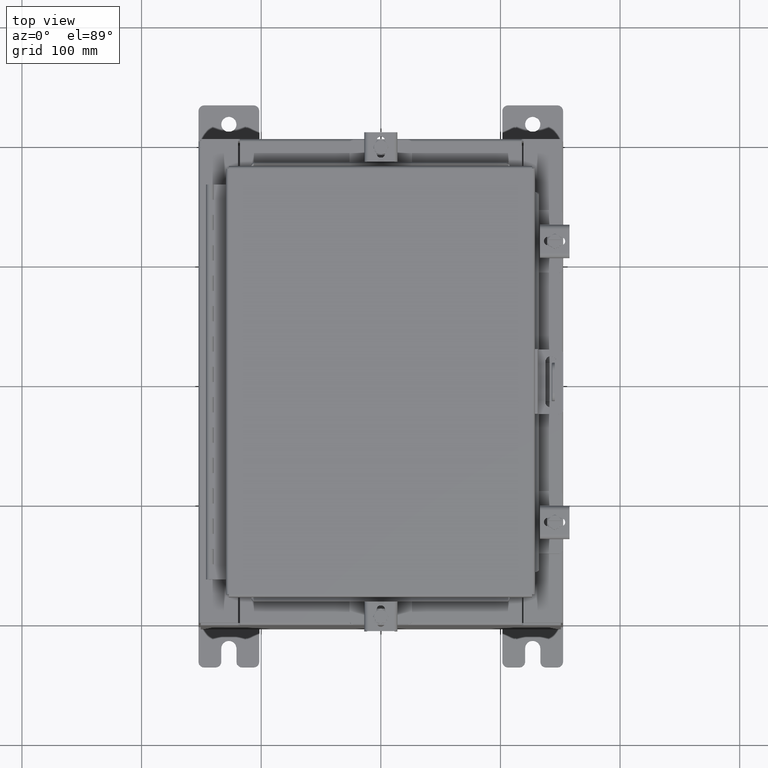
[diagram: clean part render]
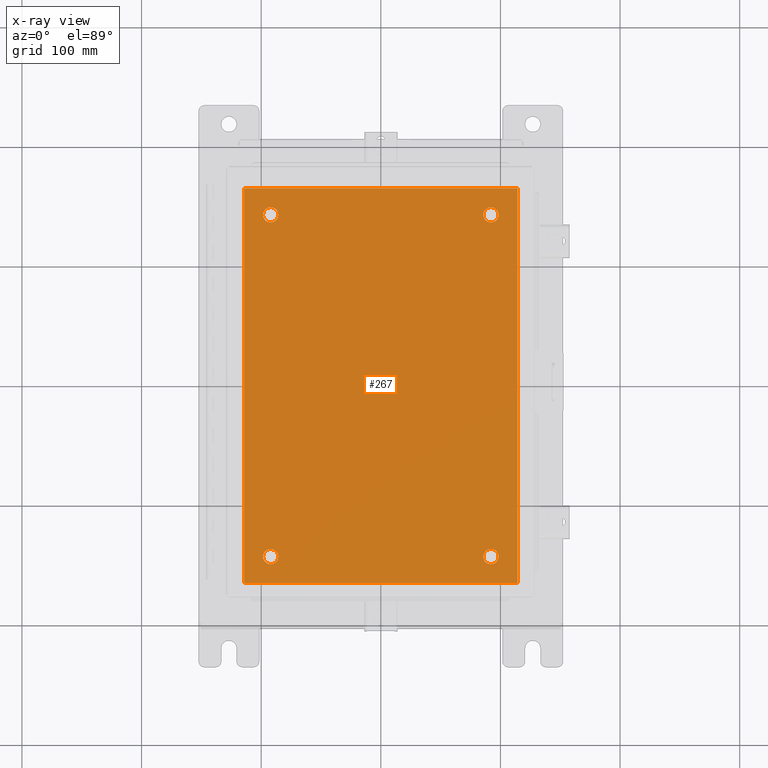
[diagram: x-ray — body ghosted, one internal face saturated and labeled with its STEP entity id]
A machine part, top view, then the same camera in x-ray: the body is ghosted and one INTERNAL B-rep face — a face not visible from any outside direction — is saturated and labeled: STEP entity #267.
In plain terms, the highlighted planar face has unit normal (0, 0, -1).
Its self-contained STEP definition (entity closure, byte-faithful):
#124 = DIRECTION ( 'NONE',  ( 1.000000000000000000, 0.0000000000000000000, 0.0000000000000000000 ) ) ;
#248 = DIRECTION ( 'NONE',  ( -1.000000000000000000, 0.0000000000000000000, 0.0000000000000000000 ) ) ;
#267 = ADVANCED_FACE ( 'NONE', ( #10952, #8062, #4106, #5446, #10926 ), #6463, .T. ) ;
#1472 = CIRCLE ( 'NONE', #15997, 0.2499999999999998100 ) ;
#1656 = CARTESIAN_POINT ( 'NONE',  ( 3.625000000000000400, 5.625000000000003600, -0.1039999999999999800 ) ) ;
#2615 = EDGE_LOOP ( 'NONE', ( #11422, #21821 ) ) ;
#3173 = VERTEX_POINT ( 'NONE', #21350 ) ;
#3224 = VECTOR ( 'NONE', #24695, 39.37007874015748100 ) ;
#3267 = EDGE_LOOP ( 'NONE', ( #3765, #21235 ) ) ;
#3629 = CARTESIAN_POINT ( 'NONE',  ( -4.499999999999998200, -6.499999999999999100, -0.1039999999999999800 ) ) ;
#3765 = ORIENTED_EDGE ( 'NONE', *, *, #6346, .T. ) ;
#3814 = EDGE_CURVE ( 'NONE', #12692, #22983, #7409, .T. ) ;
#4106 = FACE_BOUND ( 'NONE', #3267, .T. ) ;
#4127 = VERTEX_POINT ( 'NONE', #6178 ) ;
#4186 = DIRECTION ( 'NONE',  ( -0.0000000000000000000, -0.0000000000000000000, 1.000000000000000000 ) ) ;
#4393 = CIRCLE ( 'NONE', #14626, 0.2499999999999987000 ) ;
#4575 = CARTESIAN_POINT ( 'NONE',  ( -3.625000000000000400, 5.625000000000003600, -0.1039999999999999800 ) ) ;
#4678 = EDGE_CURVE ( 'NONE', #17453, #10067, #23966, .T. ) ;
#5446 = FACE_BOUND ( 'NONE', #9376, .T. ) ;
#5555 = VERTEX_POINT ( 'NONE', #24981 ) ;
#5748 = DIRECTION ( 'NONE',  ( -0.0000000000000000000, -0.0000000000000000000, 1.000000000000000000 ) ) ;
#6100 = DIRECTION ( 'NONE',  ( -0.0000000000000000000, -0.0000000000000000000, 1.000000000000000000 ) ) ;
#6178 = CARTESIAN_POINT ( 'NONE',  ( 4.500000000000001800, -6.499999999999999100, -0.1039999999999999800 ) ) ;
#6346 = EDGE_CURVE ( 'NONE', #3173, #20894, #4393, .T. ) ;
#6449 = DIRECTION ( 'NONE',  ( -1.000000000000000000, 0.0000000000000000000, 0.0000000000000000000 ) ) ;
#6463 = PLANE ( 'NONE',  #24887 ) ;
#7162 = CARTESIAN_POINT ( 'NONE',  ( -4.499999999999998200, 6.500000000000000900, -0.1039999999999999800 ) ) ;
#7264 = LINE ( 'NONE', #16316, #17413 ) ;
#7397 = AXIS2_PLACEMENT_3D ( 'NONE', #4575, #6100, #6449 ) ;
#7409 = CIRCLE ( 'NONE', #9740, 0.2499999999999987000 ) ;
#8062 = FACE_BOUND ( 'NONE', #20044, .T. ) ;
#8324 = VERTEX_POINT ( 'NONE', #25931 ) ;
#9253 = LINE ( 'NONE', #3629, #20546 ) ;
#9376 = EDGE_LOOP ( 'NONE', ( #19185, #19873 ) ) ;
#9740 = AXIS2_PLACEMENT_3D ( 'NONE', #26018, #4186, #12913 ) ;
#10067 = VERTEX_POINT ( 'NONE', #10607 ) ;
#10217 = DIRECTION ( 'NONE',  ( -0.0000000000000000000, -1.000000000000000000, -0.0000000000000000000 ) ) ;
#10421 = CARTESIAN_POINT ( 'NONE',  ( -3.625000000000000400, -5.625000000000003600, -0.1039999999999999800 ) ) ;
#10607 = CARTESIAN_POINT ( 'NONE',  ( -4.499999999999998200, 6.500000000000000900, -0.1039999999999999800 ) ) ;
#10640 = EDGE_CURVE ( 'NONE', #4127, #17453, #12781, .T. ) ;
#10926 = FACE_OUTER_BOUND ( 'NONE', #17668, .T. ) ;
#10952 = FACE_BOUND ( 'NONE', #2615, .T. ) ;
#11267 = CARTESIAN_POINT ( 'NONE',  ( -3.625000000000000400, 5.625000000000003600, -0.1039999999999999800 ) ) ;
#11422 = ORIENTED_EDGE ( 'NONE', *, *, #14909, .T. ) ;
#11429 = CIRCLE ( 'NONE', #16191, 0.2499999999999998100 ) ;
#11514 = VERTEX_POINT ( 'NONE', #13071 ) ;
#11538 = EDGE_CURVE ( 'NONE', #20987, #11514, #25147, .T. ) ;
#11543 = EDGE_CURVE ( 'NONE', #5555, #4127, #9253, .T. ) ;
#11584 = CARTESIAN_POINT ( 'NONE',  ( -3.375000000000000400, -5.625000000000003600, -0.1039999999999999800 ) ) ;
#11688 = DIRECTION ( 'NONE',  ( -0.0000000000000000000, -0.0000000000000000000, 1.000000000000000000 ) ) ;
#12449 = DIRECTION ( 'NONE',  ( -1.000000000000000000, 0.0000000000000000000, 0.0000000000000000000 ) ) ;
#12692 = VERTEX_POINT ( 'NONE', #13561 ) ;
#12781 = LINE ( 'NONE', #24662, #3224 ) ;
#12913 = DIRECTION ( 'NONE',  ( -1.000000000000000000, 0.0000000000000000000, 0.0000000000000000000 ) ) ;
#12915 = AXIS2_PLACEMENT_3D ( 'NONE', #11267, #25171, #13280 ) ;
#13070 = ORIENTED_EDGE ( 'NONE', *, *, #21903, .T. ) ;
#13071 = CARTESIAN_POINT ( 'NONE',  ( -3.375000000000000400, 5.625000000000003600, -0.1039999999999999800 ) ) ;
#13280 = DIRECTION ( 'NONE',  ( -1.000000000000000000, 0.0000000000000000000, 0.0000000000000000000 ) ) ;
#13487 = ORIENTED_EDGE ( 'NONE', *, *, #14834, .F. ) ;
#13561 = CARTESIAN_POINT ( 'NONE',  ( 3.874999999999999100, -5.625000000000003600, -0.1039999999999999800 ) ) ;
#14126 = DIRECTION ( 'NONE',  ( -1.000000000000000000, 0.0000000000000000000, -0.0000000000000000000 ) ) ;
#14134 = DIRECTION ( 'NONE',  ( 0.0000000000000000000, 0.0000000000000000000, -1.000000000000000000 ) ) ;
#14463 = EDGE_CURVE ( 'NONE', #20894, #3173, #24821, .T. ) ;
#14626 = AXIS2_PLACEMENT_3D ( 'NONE', #24809, #24714, #15587 ) ;
#14793 = ORIENTED_EDGE ( 'NONE', *, *, #3814, .T. ) ;
#14834 = EDGE_CURVE ( 'NONE', #10067, #5555, #7264, .T. ) ;
#14909 = EDGE_CURVE ( 'NONE', #15317, #8324, #11429, .T. ) ;
#15158 = ORIENTED_EDGE ( 'NONE', *, *, #10640, .F. ) ;
#15317 = VERTEX_POINT ( 'NONE', #11584 ) ;
#15587 = DIRECTION ( 'NONE',  ( -1.000000000000000000, 0.0000000000000000000, 0.0000000000000000000 ) ) ;
#15615 = CARTESIAN_POINT ( 'NONE',  ( -3.875000000000000000, 5.625000000000003600, -0.1039999999999999800 ) ) ;
#15997 = AXIS2_PLACEMENT_3D ( 'NONE', #10421, #24352, #12449 ) ;
#16191 = AXIS2_PLACEMENT_3D ( 'NONE', #19099, #5748, #248 ) ;
#16316 = CARTESIAN_POINT ( 'NONE',  ( -4.499999999999998200, -6.499999999999999100, -0.1039999999999999800 ) ) ;
#17159 = AXIS2_PLACEMENT_3D ( 'NONE', #1656, #26030, #24100 ) ;
#17413 = VECTOR ( 'NONE', #10217, 39.37007874015748100 ) ;
#17453 = VERTEX_POINT ( 'NONE', #24979 ) ;
#17668 = EDGE_LOOP ( 'NONE', ( #15158, #24976, #13487, #22027 ) ) ;
#18704 = VECTOR ( 'NONE', #20396, 39.37007874015748100 ) ;
#18954 = CARTESIAN_POINT ( 'NONE',  ( 0.0000000000000000000, 0.0000000000000000000, -0.1039999999999999800 ) ) ;
#19099 = CARTESIAN_POINT ( 'NONE',  ( -3.625000000000000400, -5.625000000000003600, -0.1039999999999999800 ) ) ;
#19185 = ORIENTED_EDGE ( 'NONE', *, *, #20837, .T. ) ;
#19289 = CARTESIAN_POINT ( 'NONE',  ( 3.375000000000001800, 5.625000000000003600, -0.1039999999999999800 ) ) ;
#19873 = ORIENTED_EDGE ( 'NONE', *, *, #11538, .T. ) ;
#20044 = EDGE_LOOP ( 'NONE', ( #14793, #13070 ) ) ;
#20396 = DIRECTION ( 'NONE',  ( -1.000000000000000000, -0.0000000000000000000, -0.0000000000000000000 ) ) ;
#20546 = VECTOR ( 'NONE', #124, 39.37007874015748100 ) ;
#20837 = EDGE_CURVE ( 'NONE', #11514, #20987, #25491, .T. ) ;
#20894 = VERTEX_POINT ( 'NONE', #19289 ) ;
#20987 = VERTEX_POINT ( 'NONE', #15615 ) ;
#21235 = ORIENTED_EDGE ( 'NONE', *, *, #14463, .T. ) ;
#21350 = CARTESIAN_POINT ( 'NONE',  ( 3.874999999999999100, 5.625000000000003600, -0.1039999999999999800 ) ) ;
#21821 = ORIENTED_EDGE ( 'NONE', *, *, #22241, .T. ) ;
#21903 = EDGE_CURVE ( 'NONE', #22983, #12692, #21968, .T. ) ;
#21968 = CIRCLE ( 'NONE', #24405, 0.2499999999999987000 ) ;
#22027 = ORIENTED_EDGE ( 'NONE', *, *, #4678, .F. ) ;
#22241 = EDGE_CURVE ( 'NONE', #8324, #15317, #1472, .T. ) ;
#22983 = VERTEX_POINT ( 'NONE', #24055 ) ;
#23567 = CARTESIAN_POINT ( 'NONE',  ( 3.625000000000000400, -5.625000000000003600, -0.1039999999999999800 ) ) ;
#23966 = LINE ( 'NONE', #7162, #18704 ) ;
#24055 = CARTESIAN_POINT ( 'NONE',  ( 3.375000000000001800, -5.625000000000003600, -0.1039999999999999800 ) ) ;
#24100 = DIRECTION ( 'NONE',  ( -1.000000000000000000, 0.0000000000000000000, 0.0000000000000000000 ) ) ;
#24352 = DIRECTION ( 'NONE',  ( -0.0000000000000000000, -0.0000000000000000000, 1.000000000000000000 ) ) ;
#24405 = AXIS2_PLACEMENT_3D ( 'NONE', #23567, #11688, #25560 ) ;
#24662 = CARTESIAN_POINT ( 'NONE',  ( 4.500000000000001800, -6.499999999999999100, -0.1039999999999999800 ) ) ;
#24695 = DIRECTION ( 'NONE',  ( 0.0000000000000000000, 1.000000000000000000, 0.0000000000000000000 ) ) ;
#24714 = DIRECTION ( 'NONE',  ( -0.0000000000000000000, -0.0000000000000000000, 1.000000000000000000 ) ) ;
#24809 = CARTESIAN_POINT ( 'NONE',  ( 3.625000000000000400, 5.625000000000003600, -0.1039999999999999800 ) ) ;
#24821 = CIRCLE ( 'NONE', #17159, 0.2499999999999987000 ) ;
#24887 = AXIS2_PLACEMENT_3D ( 'NONE', #18954, #14134, #14126 ) ;
#24976 = ORIENTED_EDGE ( 'NONE', *, *, #11543, .F. ) ;
#24979 = CARTESIAN_POINT ( 'NONE',  ( 4.500000000000001800, 6.500000000000000900, -0.1039999999999999800 ) ) ;
#24981 = CARTESIAN_POINT ( 'NONE',  ( -4.499999999999998200, -6.499999999999999100, -0.1039999999999999800 ) ) ;
#25147 = CIRCLE ( 'NONE', #7397, 0.2499999999999998100 ) ;
#25171 = DIRECTION ( 'NONE',  ( -0.0000000000000000000, -0.0000000000000000000, 1.000000000000000000 ) ) ;
#25491 = CIRCLE ( 'NONE', #12915, 0.2499999999999998100 ) ;
#25560 = DIRECTION ( 'NONE',  ( -1.000000000000000000, 0.0000000000000000000, 0.0000000000000000000 ) ) ;
#25931 = CARTESIAN_POINT ( 'NONE',  ( -3.875000000000000000, -5.625000000000003600, -0.1039999999999999800 ) ) ;
#26018 = CARTESIAN_POINT ( 'NONE',  ( 3.625000000000000400, -5.625000000000003600, -0.1039999999999999800 ) ) ;
#26030 = DIRECTION ( 'NONE',  ( -0.0000000000000000000, -0.0000000000000000000, 1.000000000000000000 ) ) ;